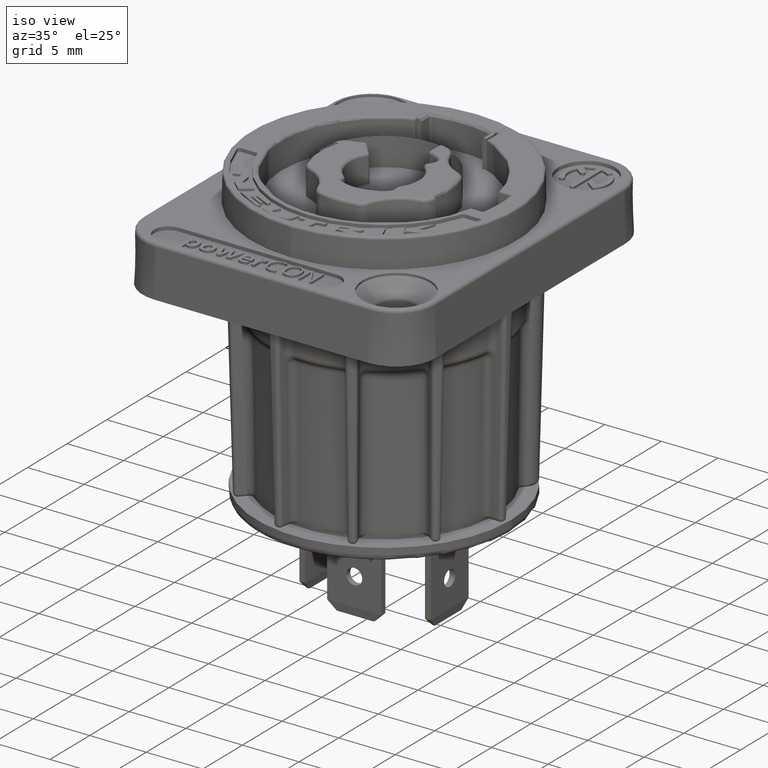
[diagram: clean part render]
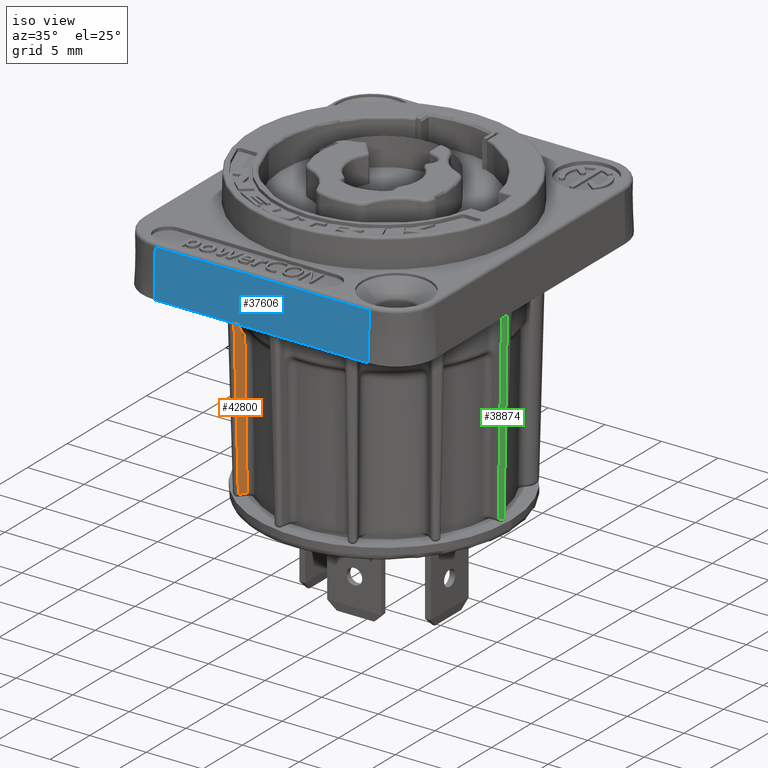
[diagram: same view with three faces highlighted in distinct colors, each labeled with its STEP entity id]
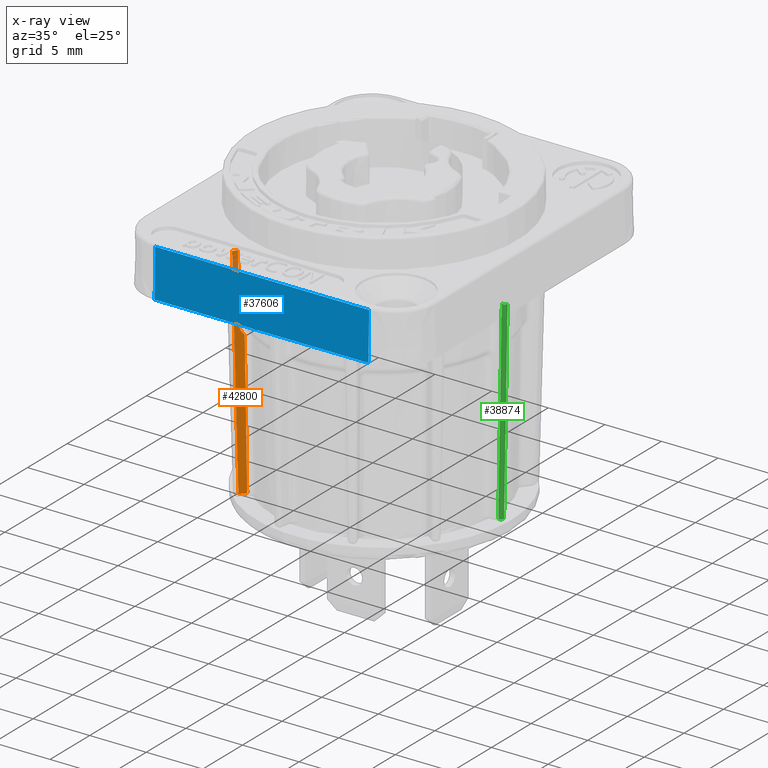
[diagram: x-ray of the same camera — body ghosted, the three highlighted faces saturated]
A machine part, iso view with three faces highlighted in distinct colors.
The next image is the same camera in x-ray (body ghosted, the three faces saturated) — at least one of them is partly hidden behind the body in this view.
Their STEP definitions:

[orange] entity #42800 — the highlighted planar face has unit normal (-0.7489, 0.6626, 0.0087).
#5239=CARTESIAN_POINT('',(-7.183194232887E0,-8.912451523200E0,
2.004363267749E0));
#15041=DIRECTION('',(6.626200482157E-1,7.489557207890E-1,-4.681013107437E-13));
#15042=VECTOR('',#15041,6.602974248557E-1);
#15043=CARTESIAN_POINT('',(-6.973063858256E0,-8.417372123415E0,
-1.755261796065E1));
#15044=LINE('',#15043,#15042);
#15045=CARTESIAN_POINT('',(-7.183194232887E0,-8.912451523200E0,
2.004363267749E0));
#15046=CARTESIAN_POINT('',(-7.167286824285E0,-8.874899894565E0,
5.183183759369E-1));
#15047=CARTESIAN_POINT('',(-7.134848333311E0,-8.798356492554E0,
-2.509594957580E0));
#15048=CARTESIAN_POINT('',(-7.084948277967E0,-8.680715318169E0,
-7.159426913114E0));
#15049=CARTESIAN_POINT('',(-7.031876948377E0,-8.555716575054E0,
-1.209574522527E1));
#15050=CARTESIAN_POINT('',(-6.993161151656E0,-8.464626919462E0,
-1.568940738373E1));
#15051=CARTESIAN_POINT('',(-6.973063858256E0,-8.417372123415E0,
-1.755261796065E1));
#15053=DIRECTION('',(-6.626200482172E-1,-7.489557207877E-1,
-3.422634505009E-13));
#15054=VECTOR('',#15053,4.411523670671E-1);
#15055=CARTESIAN_POINT('',(-6.890877830149E0,-8.582047934146E0,
2.004363267749E0));
#15056=LINE('',#15055,#15054);
#15057=CARTESIAN_POINT('',(-6.863680236825E0,-8.472582164064E0,
-3.973087289384E0));
#15058=CARTESIAN_POINT('',(-6.865986842253E0,-8.481852183992E0,
-3.467183472955E0));
#15059=CARTESIAN_POINT('',(-6.870553717714E0,-8.500213072359E0,
-2.465001998243E0));
#15060=CARTESIAN_POINT('',(-6.877160999843E0,-8.526796617454E0,
-1.013596008497E0));
#15061=CARTESIAN_POINT('',(-6.883839567578E0,-8.553685907468E0,
4.549069459358E-1));
#15062=CARTESIAN_POINT('',(-6.888505492508E0,-8.572485670777E0,
1.481911034497E0));
#15063=CARTESIAN_POINT('',(-6.890877830149E0,-8.582047934146E0,
2.004363267749E0));
#15065=CARTESIAN_POINT('',(-6.718160349200E0,-8.300002110681E0,
-4.588090414980E0));
#15066=CARTESIAN_POINT('',(-6.728681549792E0,-8.312152607270E0,
-4.568468145069E0));
#15067=CARTESIAN_POINT('',(-6.748342204817E0,-8.334899173328E0,
-4.528662018407E0));
#15068=CARTESIAN_POINT('',(-6.773439904922E0,-8.364048062520E0,
-4.469354668287E0));
#15069=CARTESIAN_POINT('',(-6.796246518917E0,-8.390662621610E0,
-4.405849901618E0));
#15070=CARTESIAN_POINT('',(-6.815746290425E0,-8.413563224540E0,
-4.340542061651E0));
#15071=CARTESIAN_POINT('',(-6.832187102838E0,-8.433040969924E0,
-4.272601992131E0));
#15072=CARTESIAN_POINT('',(-6.845038731117E0,-8.448461216742E0,
-4.204712255441E0));
#15073=CARTESIAN_POINT('',(-6.855152771188E0,-8.460851830714E0,
-4.131914226175E0));
#15074=CARTESIAN_POINT('',(-6.861843074692E0,-8.469442073836E0,
-4.053840996009E0));
#15075=CARTESIAN_POINT('',(-6.863555820348E0,-8.472082356088E0,
-4.000361089720E0));
#15076=CARTESIAN_POINT('',(-6.863680236825E0,-8.472582164064E0,
-3.973087289384E0));
#15078=CARTESIAN_POINT('',(-6.593685805917E0,-8.156251985062E0,
-4.820223401639E0));
#15079=CARTESIAN_POINT('',(-6.607580979607E0,-8.172298884160E0,
-4.794311787902E0));
#15080=CARTESIAN_POINT('',(-6.635328205322E0,-8.204342896964E0,
-4.742567922333E0));
#15081=CARTESIAN_POINT('',(-6.676819708295E0,-8.252259592821E0,
-4.665190240092E0));
#15082=CARTESIAN_POINT('',(-6.704394500729E0,-8.284104523480E0,
-4.613763891389E0));
#15083=CARTESIAN_POINT('',(-6.718160349200E0,-8.300002110681E0,
-4.588090414980E0));
#15085=CARTESIAN_POINT('',(-6.535537546762E0,-7.922838589647E0,
-1.755261796065E1));
#15086=CARTESIAN_POINT('',(-6.539930393127E0,-7.940412665665E0,
-1.659524265919E1));
#15087=CARTESIAN_POINT('',(-6.548910363782E0,-7.976365446254E0,
-1.463607091241E1));
#15088=CARTESIAN_POINT('',(-6.562807056512E0,-8.032091301229E0,
-1.159751666527E1));
#15089=CARTESIAN_POINT('',(-6.577585719926E0,-8.091450690968E0,
-8.358765046755E0));
#15090=CARTESIAN_POINT('',(-6.588202641207E0,-8.134168799874E0,
-6.026396556683E0));
#15091=CARTESIAN_POINT('',(-6.593685805917E0,-8.156251985062E0,
-4.820223401639E0));
#19111=VERTEX_POINT('',#15065);
#19112=VERTEX_POINT('',#15076);
#19114=VERTEX_POINT('',#15078);
#19319=VERTEX_POINT('',#5239);
#19322=CARTESIAN_POINT('',(-6.890877830149E0,-8.582047934146E0,
2.004363267749E0));
#19323=VERTEX_POINT('',#19322);
#19387=CARTESIAN_POINT('',(-6.973063858258E0,-8.417372123421E0,
-1.755261796034E1));
#19388=VERTEX_POINT('',#19387);
#19389=CARTESIAN_POINT('',(-6.535537546762E0,-7.922838589647E0,
-1.755261796065E1));
#19390=VERTEX_POINT('',#19389);
#42784=CARTESIAN_POINT('',(-8.103143972290E0,-9.958793206141E0,2.5E0));
#42785=DIRECTION('',(-7.489272028501E-1,6.625948176747E-1,8.726535498374E-3));
#42786=DIRECTION('',(6.626200482157E-1,7.489557207890E-1,0.E0));
#42787=AXIS2_PLACEMENT_3D('',#42784,#42785,#42786);
#42788=PLANE('',#42787);
#42789=ORIENTED_EDGE('',*,*,#42776,.F.);
#42790=ORIENTED_EDGE('',*,*,#26744,.F.);
#42791=ORIENTED_EDGE('',*,*,#27007,.F.);
#42792=ORIENTED_EDGE('',*,*,#27056,.F.);
#42794=ORIENTED_EDGE('',*,*,#42793,.F.);
#42796=ORIENTED_EDGE('',*,*,#42795,.F.);
#42797=ORIENTED_EDGE('',*,*,#42674,.F.);
#42798=EDGE_LOOP('',(#42789,#42790,#42791,#42792,#42794,#42796,#42797));
#42799=FACE_OUTER_BOUND('',#42798,.F.);
#42800=ADVANCED_FACE('',(#42799),#42788,.F.);
#15052=B_SPLINE_CURVE_WITH_KNOTS('',3,(#15045,#15046,#15047,#15048,#15049,
#15050,#15051),.UNSPECIFIED.,.F.,.F.,(4,1,1,1,4),(0.E0,2.5E-1,5.E-1,7.5E-1,
1.E0),.UNSPECIFIED.);
#15064=B_SPLINE_CURVE_WITH_KNOTS('',3,(#15057,#15058,#15059,#15060,#15061,
#15062,#15063),.UNSPECIFIED.,.F.,.F.,(4,1,1,1,4),(0.E0,2.5E-1,5.E-1,7.5E-1,
1.E0),.UNSPECIFIED.);
#15077=B_SPLINE_CURVE_WITH_KNOTS('',3,(#15065,#15066,#15067,#15068,#15069,
#15070,#15071,#15072,#15073,#15074,#15075,#15076),.UNSPECIFIED.,.F.,.F.,(4,1,1,
1,1,1,1,1,1,4),(0.E0,1.111111111111E-1,2.222222222222E-1,3.333333333333E-1,
4.444444444444E-1,5.555555555556E-1,6.666666666667E-1,7.777777777778E-1,
8.888888888889E-1,1.E0),.UNSPECIFIED.);
#15084=B_SPLINE_CURVE_WITH_KNOTS('',3,(#15078,#15079,#15080,#15081,#15082,
#15083),.UNSPECIFIED.,.F.,.F.,(4,1,1,4),(0.E0,3.333333333333E-1,
6.666666666667E-1,1.E0),.UNSPECIFIED.);
#15092=B_SPLINE_CURVE_WITH_KNOTS('',3,(#15085,#15086,#15087,#15088,#15089,
#15090,#15091),.UNSPECIFIED.,.F.,.F.,(4,1,1,1,4),(0.E0,2.5E-1,5.E-1,7.5E-1,
1.E0),.UNSPECIFIED.);
#26744=EDGE_CURVE('',#19319,#19388,#15052,.T.);
#27007=EDGE_CURVE('',#19323,#19319,#15056,.T.);
#27056=EDGE_CURVE('',#19112,#19323,#15064,.T.);
#42674=EDGE_CURVE('',#19390,#19114,#15092,.T.);
#42776=EDGE_CURVE('',#19388,#19390,#15044,.T.);
#42793=EDGE_CURVE('',#19111,#19112,#15077,.T.);
#42795=EDGE_CURVE('',#19114,#19111,#15084,.T.);

[blue] entity #37606 — the highlighted planar face has unit normal (0, 0.9998, -0.0175).
#6688=DIRECTION('',(-1.E0,0.E0,0.E0));
#6689=VECTOR('',#6688,1.89E1);
#6690=CARTESIAN_POINT('',(9.45E0,-1.545E1,0.E0));
#6691=LINE('',#6690,#6689);
#12818=DIRECTION('',(1.E0,0.E0,0.E0));
#12819=VECTOR('',#12818,1.89E1);
#12820=CARTESIAN_POINT('',(-9.45E0,-1.537659733744E1,4.205235721931E0));
#12821=LINE('',#12820,#12819);
#12822=DIRECTION('',(0.E0,-1.745240643728E-2,-9.998476951564E-1));
#12823=VECTOR('',#12822,4.205876297263E0);
#12824=CARTESIAN_POINT('',(9.45E0,-1.537659733744E1,4.205235721931E0));
#12825=LINE('',#12824,#12823);
#12831=DIRECTION('',(0.E0,-1.745240643728E-2,-9.998476951564E-1));
#12832=VECTOR('',#12831,4.205876297263E0);
#12833=CARTESIAN_POINT('',(-9.45E0,-1.537659733744E1,4.205235721931E0));
#12834=LINE('',#12833,#12832);
#18437=CARTESIAN_POINT('',(9.45E0,-1.545E1,0.E0));
#18438=CARTESIAN_POINT('',(-9.45E0,-1.545E1,0.E0));
#18439=VERTEX_POINT('',#18437);
#18440=VERTEX_POINT('',#18438);
#19869=CARTESIAN_POINT('',(-9.45E0,-1.537659733744E1,4.205235721931E0));
#19870=VERTEX_POINT('',#19869);
#19873=CARTESIAN_POINT('',(9.45E0,-1.537659733744E1,4.205235721931E0));
#19874=VERTEX_POINT('',#19873);
#37594=CARTESIAN_POINT('',(9.539960071143E0,-1.545E1,0.E0));
#37595=DIRECTION('',(0.E0,9.998476951564E-1,-1.745240643728E-2));
#37596=DIRECTION('',(1.E0,0.E0,0.E0));
#37597=AXIS2_PLACEMENT_3D('',#37594,#37595,#37596);
#37598=PLANE('',#37597);
#37599=ORIENTED_EDGE('',*,*,#37508,.T.);
#37600=ORIENTED_EDGE('',*,*,#37589,.T.);
#37601=ORIENTED_EDGE('',*,*,#29408,.T.);
#37603=ORIENTED_EDGE('',*,*,#37602,.F.);
#37604=EDGE_LOOP('',(#37599,#37600,#37601,#37603));
#37605=FACE_OUTER_BOUND('',#37604,.F.);
#37606=ADVANCED_FACE('',(#37605),#37598,.F.);
#29408=EDGE_CURVE('',#18439,#18440,#6691,.T.);
#37508=EDGE_CURVE('',#19870,#19874,#12821,.T.);
#37589=EDGE_CURVE('',#19874,#18439,#12825,.T.);
#37602=EDGE_CURVE('',#19870,#18440,#12834,.T.);

[green] entity #38874 — the highlighted face is a freeform B-spline surface patch.
#5217=CARTESIAN_POINT('',(1.163427813539E1,-1.026049053433E0,
-1.947646103120E-1));
#5218=CARTESIAN_POINT('',(1.159013723574E1,-1.007344171229E0,
-1.936672964742E0));
#5219=CARTESIAN_POINT('',(1.149867781116E1,-9.685984117562E-1,
-5.543672040807E0));
#5220=CARTESIAN_POINT('',(1.135541928037E1,-9.079446830095E-1,
-1.118594575606E1));
#5221=CARTESIAN_POINT('',(1.124883311753E1,-8.628478082697E-1,
-1.537751646609E1));
#5222=CARTESIAN_POINT('',(1.119333869841E1,-8.393776023307E-1,
-1.755785308425E1));
#13282=CARTESIAN_POINT('',(1.149080081846E1,-1.256263270992E0,
-1.955744607683E-1));
#13283=CARTESIAN_POINT('',(1.148605345346E1,-1.259135329345E0,
-1.956347572605E-1));
#13284=CARTESIAN_POINT('',(1.147640841924E1,-1.264625480327E0,
-1.951150874281E-1));
#13285=CARTESIAN_POINT('',(1.146163282639E1,-1.272031165452E0,
-1.924486081511E-1));
#13286=CARTESIAN_POINT('',(1.144630362992E1,-1.278718678289E0,
-1.878172109064E-1));
#13287=CARTESIAN_POINT('',(1.143040598339E1,-1.284644327530E0,
-1.811069714314E-1));
#13288=CARTESIAN_POINT('',(1.141392287929E1,-1.289759901051E0,
-1.721938265473E-1));
#13289=CARTESIAN_POINT('',(1.139679534516E1,-1.294018248310E0,
-1.609169875506E-1));
#13290=CARTESIAN_POINT('',(1.137869460769E1,-1.297386493434E0,
-1.468657226483E-1));
#13291=CARTESIAN_POINT('',(1.135949343341E1,-1.299712546092E0,
-1.296899406852E-1));
#13292=CARTESIAN_POINT('',(1.133911201704E1,-1.300790168332E0,
-1.091631236323E-1));
#13293=CARTESIAN_POINT('',(1.132472284630E1,-1.300509706762E0,
-9.325677620829E-2));
#13294=CARTESIAN_POINT('',(1.131726957849E1,-1.300062291221E0,
-8.482355044238E-2));
#13296=CARTESIAN_POINT('',(1.163427813539E1,-1.026049053433E0,
-1.947646103120E-1));
#13297=CARTESIAN_POINT('',(1.163345634054E1,-1.035382374301E0,
-1.947131403426E-1));
#13298=CARTESIAN_POINT('',(1.163093444950E1,-1.053966275704E0,
-1.946254641071E-1));
#13299=CARTESIAN_POINT('',(1.162460377642E1,-1.081235315494E0,
-1.945413667078E-1));
#13300=CARTESIAN_POINT('',(1.161567801724E1,-1.108013296855E0,-1.945044719E-1));
#13301=CARTESIAN_POINT('',(1.160430459888E1,-1.133760031023E0,
-1.945161491257E-1));
#13302=CARTESIAN_POINT('',(1.159060311884E1,-1.158282181991E0,
-1.945757086421E-1));
#13303=CARTESIAN_POINT('',(1.157467838007E1,-1.181400502089E0,
-1.946826498944E-1));
#13304=CARTESIAN_POINT('',(1.155670847746E1,-1.202890188452E0,
-1.948355141258E-1));
#13305=CARTESIAN_POINT('',(1.153661985088E1,-1.222795950565E0,
-1.950353012538E-1));
#13306=CARTESIAN_POINT('',(1.151459069017E1,-1.240829252037E0,
-1.952808510451E-1));
#13307=CARTESIAN_POINT('',(1.149888453189E1,-1.251372724648E0,
-1.954723032405E-1));
#13308=CARTESIAN_POINT('',(1.149080081846E1,-1.256263270992E0,
-1.955744607683E-1));
#13310=CARTESIAN_POINT('',(1.089428117657E1,-8.169515690992E-1,
-1.754999999969E1));
#13311=DIRECTION('',(2.546020216759E-2,-1.052520810946E-2,9.996204270121E-1));
#13312=DIRECTION('',(-6.975381764343E-2,-9.975260660767E-1,-8.726535498056E-3));
#13313=AXIS2_PLACEMENT_3D('',#13310,#13311,#13312);
#13350=CARTESIAN_POINT('',(1.131726957849E1,-1.300062291221E0,
-8.482355044238E-2));
#13360=CARTESIAN_POINT('',(1.131726957849E1,-1.300062291221E0,
-8.482355044238E-2));
#13361=CARTESIAN_POINT('',(1.126722146947E1,-1.279297341016E0,
-2.058405440268E0));
#13362=CARTESIAN_POINT('',(1.116760869984E1,-1.237992079191E0,
-5.983755239828E0));
#13363=CARTESIAN_POINT('',(1.101964541606E1,-1.176710919913E0,
-1.180606007499E1));
#13364=CARTESIAN_POINT('',(1.092195864164E1,-1.136302047162E0,
-1.564433912956E1));
#13365=CARTESIAN_POINT('',(1.087335503127E1,-1.116209388919E0,
-1.755261796065E1));
#19442=CARTESIAN_POINT('',(1.087335503127E1,-1.116209388919E0,
-1.755261796065E1));
#19444=VERTEX_POINT('',#19442);
#19449=CARTESIAN_POINT('',(1.119333869962E1,-8.393776024197E-1,
-1.755785308417E1));
#19450=VERTEX_POINT('',#19449);
#19797=VERTEX_POINT('',#13350);
#19799=VERTEX_POINT('',#13282);
#19801=VERTEX_POINT('',#13296);
#38836=CARTESIAN_POINT('',(1.163725409308E1,-1.023230855196E0,
-9.002537600890E-2));
#38837=CARTESIAN_POINT('',(1.161493957530E1,-1.013972566328E0,
-9.699692748357E-1));
#38838=CARTESIAN_POINT('',(1.153996185434E1,-9.828723573040E-1,
-3.925699746839E0));
#38839=CARTESIAN_POINT('',(1.140720118428E1,-9.278527723119E-1,
-9.153766098582E0));
#38840=CARTESIAN_POINT('',(1.128148344298E1,-8.758224288114E-1,
-1.409642994007E1));
#38841=CARTESIAN_POINT('',(1.120848167152E1,-8.456376838648E-1,
-1.696330851217E1));
#38842=CARTESIAN_POINT('',(1.119333869961E1,-8.393776024202E-1,
-1.755785308448E1));
#38843=CARTESIAN_POINT('',(1.162412872052E1,-1.197735042642E0,
-9.152856708577E-2));
#38844=CARTESIAN_POINT('',(1.160181420286E1,-1.188476753824E0,
-9.714724610702E-1));
#38845=CARTESIAN_POINT('',(1.152683648232E1,-1.157376544974E0,
-3.927202916661E0));
#38846=CARTESIAN_POINT('',(1.139407581302E1,-1.102356960296E0,
-9.155269238476E0));
#38847=CARTESIAN_POINT('',(1.126835807247E1,-1.050326617108E0,
-1.409793305035E1));
#38848=CARTESIAN_POINT('',(1.119535630147E1,-1.020141872348E0,
-1.696481160473E1));
#38849=CARTESIAN_POINT('',(1.118021332965E1,-1.013881790942E0,
-1.755935617334E1));
#38850=CARTESIAN_POINT('',(1.149179049762E1,-1.312226146473E0,
-8.937721187515E-2));
#38851=CARTESIAN_POINT('',(1.146947599651E1,-1.302967864519E0,
-9.693204534734E-1));
#38852=CARTESIAN_POINT('',(1.139449833206E1,-1.271867678934E0,
-3.925048697849E0));
#38853=CARTESIAN_POINT('',(1.126173776514E1,-1.216848136690E0,
-9.153110987650E0));
#38854=CARTESIAN_POINT('',(1.113602012609E1,-1.164817835505E0,
-1.409577080930E1));
#38855=CARTESIAN_POINT('',(1.106301841587E1,-1.134633115880E0,
-1.696264697640E1));
#38856=CARTESIAN_POINT('',(1.104787545675E1,-1.128373039721E0,
-1.755719104674E1));
#38857=CARTESIAN_POINT('',(1.131726957848E1,-1.300062291220E0,
-8.482355043093E-2));
#38858=CARTESIAN_POINT('',(1.129495510070E1,-1.290804018948E0,
-9.647658718336E-1));
#38859=CARTESIAN_POINT('',(1.121997751537E1,-1.259703866181E0,
-3.920490997276E0));
#38860=CARTESIAN_POINT('',(1.108721709287E1,-1.204684383787E0,
-9.148547599892E0));
#38861=CARTESIAN_POINT('',(1.096149959697E1,-1.152654141850E0,
-1.409120179331E1));
#38862=CARTESIAN_POINT('',(1.088849797250E1,-1.122469457678E0,
-1.695807459313E1));
#38863=CARTESIAN_POINT('',(1.087335503127E1,-1.116209388919E0,
-1.755261796065E1));
#38864=(BOUNDED_SURFACE()B_SPLINE_SURFACE(3,3,((#38836,#38837,#38838,#38839,
#38840,#38841,#38842),(#38843,#38844,#38845,#38846,#38847,#38848,#38849),
(#38850,#38851,#38852,#38853,#38854,#38855,#38856),(#38857,#38858,#38859,#38860,
#38861,#38862,#38863)),.UNSPECIFIED.,.F.,.F.,.F.)B_SPLINE_SURFACE_WITH_KNOTS((4,
4),(4,1,1,1,4),(0.E0,1.E0),(4.355807741688E-1,4.641717890406E-1,
5.316179765936E-1,6.054505256956E-1,6.247684382839E-1),.UNSPECIFIED.)GEOMETRIC_REPRESENTATION_ITEM()RATIONAL_B_SPLINE_SURFACE(((1.170299097752E0,
1.170299097752E0,1.170299097752E0,1.170299097752E0,1.170299097752E0,
1.170299097752E0,1.170299097752E0),(9.432336340828E-1,9.432336340828E-1,
9.432336340828E-1,9.432336340828E-1,9.432336340828E-1,9.432336340828E-1,
9.432336340828E-1),(9.432336340828E-1,9.432336340828E-1,9.432336340828E-1,
9.432336340828E-1,9.432336340828E-1,9.432336340828E-1,9.432336340828E-1),(
1.170299097752E0,1.170299097752E0,1.170299097752E0,1.170299097752E0,
1.170299097752E0,1.170299097752E0,1.170299097752E0)))REPRESENTATION_ITEM('')SURFACE());
#38866=ORIENTED_EDGE('',*,*,#38865,.F.);
#38867=ORIENTED_EDGE('',*,*,#37701,.F.);
#38868=ORIENTED_EDGE('',*,*,#26679,.T.);
#38869=ORIENTED_EDGE('',*,*,#38828,.F.);
#38871=ORIENTED_EDGE('',*,*,#38870,.F.);
#38872=EDGE_LOOP('',(#38866,#38867,#38868,#38869,#38871));
#38873=FACE_OUTER_BOUND('',#38872,.F.);
#38874=ADVANCED_FACE('',(#38873),#38864,.T.);
#5223=B_SPLINE_CURVE_WITH_KNOTS('',3,(#5217,#5218,#5219,#5220,#5221,#5222),
.UNSPECIFIED.,.F.,.F.,(4,1,1,4),(0.E0,3.333333333333E-1,6.666666666667E-1,1.E0),
.UNSPECIFIED.);
#13295=B_SPLINE_CURVE_WITH_KNOTS('',3,(#13282,#13283,#13284,#13285,#13286,
#13287,#13288,#13289,#13290,#13291,#13292,#13293,#13294),.UNSPECIFIED.,.F.,.F.,(
4,1,1,1,1,1,1,1,1,1,4),(0.E0,1.E-1,2.E-1,3.E-1,4.E-1,5.E-1,6.E-1,7.E-1,8.E-1,
9.E-1,1.E0),.UNSPECIFIED.);
#13309=B_SPLINE_CURVE_WITH_KNOTS('',3,(#13296,#13297,#13298,#13299,#13300,
#13301,#13302,#13303,#13304,#13305,#13306,#13307,#13308),.UNSPECIFIED.,.F.,.F.,(
4,1,1,1,1,1,1,1,1,1,4),(0.E0,1.E-1,2.E-1,3.E-1,4.E-1,5.E-1,6.E-1,7.E-1,8.E-1,
9.E-1,1.E0),.UNSPECIFIED.);
#13314=CIRCLE('',#13313,3.E-1);
#13366=B_SPLINE_CURVE_WITH_KNOTS('',3,(#13360,#13361,#13362,#13363,#13364,
#13365),.UNSPECIFIED.,.F.,.F.,(4,1,1,4),(0.E0,3.333333333333E-1,
6.666666666667E-1,1.E0),.UNSPECIFIED.);
#26679=EDGE_CURVE('',#19801,#19450,#5223,.T.);
#37701=EDGE_CURVE('',#19801,#19799,#13309,.T.);
#38828=EDGE_CURVE('',#19444,#19450,#13314,.T.);
#38865=EDGE_CURVE('',#19799,#19797,#13295,.T.);
#38870=EDGE_CURVE('',#19797,#19444,#13366,.T.);